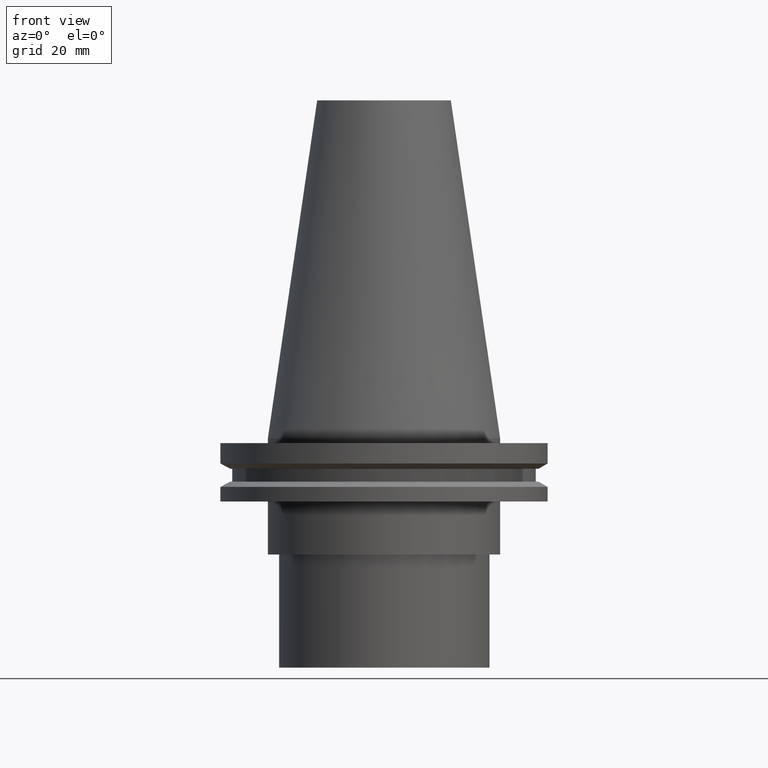
[diagram: clean part render]
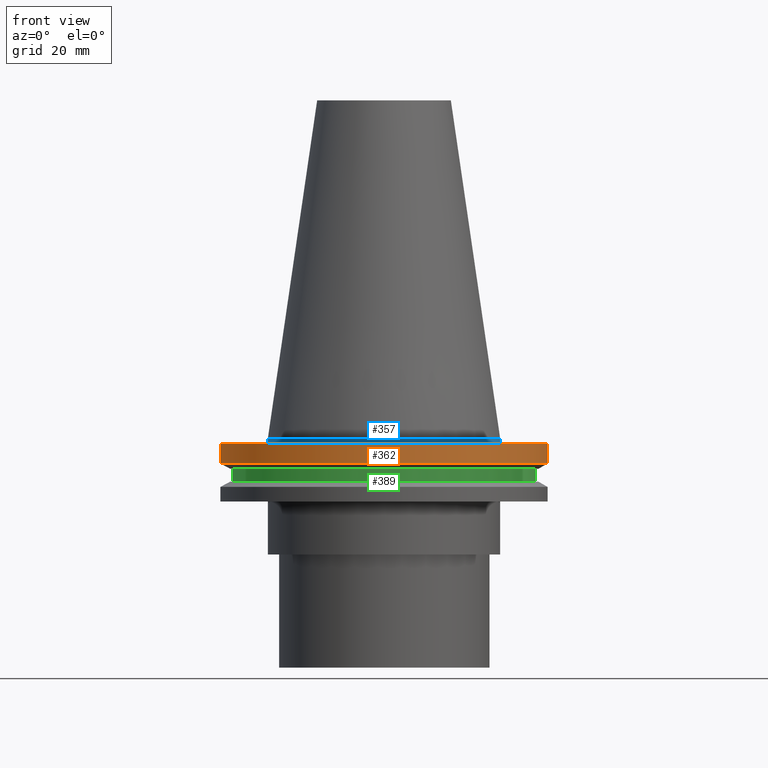
[diagram: same view with three faces highlighted in distinct colors, each labeled with its STEP entity id]
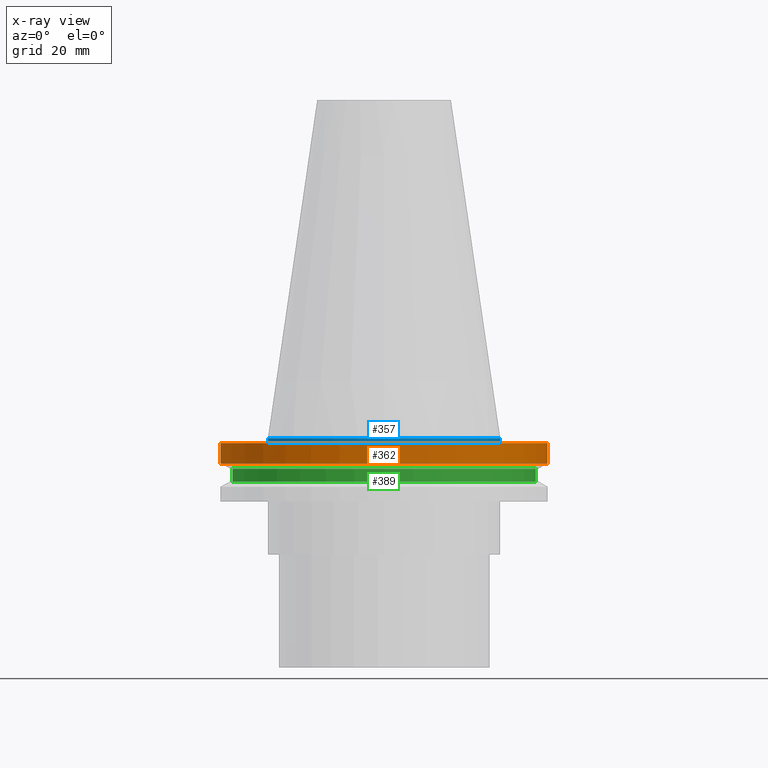
[diagram: x-ray of the same camera — body ghosted, the three highlighted faces saturated]
A machine part, front view with three faces highlighted in distinct colors.
The next image is the same camera in x-ray (body ghosted, the three faces saturated) — at least one of them is partly hidden behind the body in this view.
Their STEP definitions:

[orange] entity #362 — the highlighted cylindrical surface (bore or boss wall) has radius 49.215 mm, axis along (-0, -0, 1).
#18 = VERTEX_POINT ( 'NONE', #197 ) ;
#58 = EDGE_LOOP ( 'NONE', ( #141 ) ) ;
#82 = CARTESIAN_POINT ( 'NONE',  ( 49.21500000000000341, 0.000000000000000000, -7.602389855251287187 ) ) ;
#124 = FACE_OUTER_BOUND ( 'NONE', #368, .T. ) ;
#127 = DIRECTION ( 'NONE',  ( -0.000000000000000000, -0.000000000000000000, 1.000000000000000000 ) ) ;
#128 = DIRECTION ( 'NONE',  ( 1.000000000000000000, 0.000000000000000000, 0.000000000000000000 ) ) ;
#141 = ORIENTED_EDGE ( 'NONE', *, *, #273, .T. ) ;
#160 = CARTESIAN_POINT ( 'NONE',  ( 0.000000000000000000, 0.000000000000000000, -7.602389855251287187 ) ) ;
#172 = EDGE_CURVE ( 'NONE', #18, #18, #373, .T. ) ;
#179 = DIRECTION ( 'NONE',  ( -0.000000000000000000, -0.000000000000000000, 1.000000000000000000 ) ) ;
#197 = CARTESIAN_POINT ( 'NONE',  ( 49.21499999999999631, 0.000000000000000000, -1.499999999999987566 ) ) ;
#224 = AXIS2_PLACEMENT_3D ( 'NONE', #242, #334, #244 ) ;
#229 = AXIS2_PLACEMENT_3D ( 'NONE', #289, #179, #356 ) ;
#242 = CARTESIAN_POINT ( 'NONE',  ( 0.000000000000000000, 0.000000000000000000, 101.5999999999999943 ) ) ;
#244 = DIRECTION ( 'NONE',  ( 1.000000000000000000, 0.000000000000000000, 0.000000000000000000 ) ) ;
#272 = CYLINDRICAL_SURFACE ( 'NONE', #224, 49.21499999999999631 ) ;
#273 = EDGE_CURVE ( 'NONE', #376, #376, #278, .T. ) ;
#278 = CIRCLE ( 'NONE', #326, 49.21500000000000341 ) ;
#287 = ORIENTED_EDGE ( 'NONE', *, *, #172, .F. ) ;
#289 = CARTESIAN_POINT ( 'NONE',  ( 0.000000000000000000, 0.000000000000000000, -1.499999999999987566 ) ) ;
#326 = AXIS2_PLACEMENT_3D ( 'NONE', #160, #127, #128 ) ;
#334 = DIRECTION ( 'NONE',  ( -0.000000000000000000, -0.000000000000000000, 1.000000000000000000 ) ) ;
#336 = FACE_OUTER_BOUND ( 'NONE', #58, .T. ) ;
#356 = DIRECTION ( 'NONE',  ( 1.000000000000000000, 0.000000000000000000, 0.000000000000000000 ) ) ;
#362 = ADVANCED_FACE ( 'NONE', ( #124, #336 ), #272, .T. ) ;
#368 = EDGE_LOOP ( 'NONE', ( #287 ) ) ;
#373 = CIRCLE ( 'NONE', #229, 49.21499999999999631 ) ;
#376 = VERTEX_POINT ( 'NONE', #82 ) ;

[blue] entity #357 — the highlighted cylindrical surface (bore or boss wall) has radius 34.925 mm, axis along (-0, -0, 1).
#23 = AXIS2_PLACEMENT_3D ( 'NONE', #343, #79, #191 ) ;
#29 = EDGE_CURVE ( 'NONE', #367, #367, #313, .T. ) ;
#44 = AXIS2_PLACEMENT_3D ( 'NONE', #311, #95, #246 ) ;
#79 = DIRECTION ( 'NONE',  ( -0.000000000000000000, -0.000000000000000000, 1.000000000000000000 ) ) ;
#95 = DIRECTION ( 'NONE',  ( -0.000000000000000000, -0.000000000000000000, 1.000000000000000000 ) ) ;
#100 = DIRECTION ( 'NONE',  ( -0.000000000000000000, -0.000000000000000000, 1.000000000000000000 ) ) ;
#106 = AXIS2_PLACEMENT_3D ( 'NONE', #131, #100, #338 ) ;
#107 = CARTESIAN_POINT ( 'NONE',  ( 34.92499999999999005, 0.000000000000000000, -1.499999999999987566 ) ) ;
#111 = EDGE_LOOP ( 'NONE', ( #139 ) ) ;
#131 = CARTESIAN_POINT ( 'NONE',  ( 0.000000000000000000, 0.000000000000000000, -1.499999999999987566 ) ) ;
#135 = VERTEX_POINT ( 'NONE', #107 ) ;
#139 = ORIENTED_EDGE ( 'NONE', *, *, #29, .F. ) ;
#183 = CYLINDRICAL_SURFACE ( 'NONE', #44, 34.92499999999999005 ) ;
#188 = FACE_OUTER_BOUND ( 'NONE', #284, .T. ) ;
#189 = CARTESIAN_POINT ( 'NONE',  ( 34.92499999999999005, 0.000000000000000000, 0.000000000000000000 ) ) ;
#191 = DIRECTION ( 'NONE',  ( 1.000000000000000000, 0.000000000000000000, 0.000000000000000000 ) ) ;
#226 = EDGE_CURVE ( 'NONE', #135, #135, #340, .T. ) ;
#246 = DIRECTION ( 'NONE',  ( 1.000000000000000000, 0.000000000000000000, 0.000000000000000000 ) ) ;
#270 = FACE_OUTER_BOUND ( 'NONE', #111, .T. ) ;
#284 = EDGE_LOOP ( 'NONE', ( #372 ) ) ;
#311 = CARTESIAN_POINT ( 'NONE',  ( 0.000000000000000000, 0.000000000000000000, 101.5999999999999943 ) ) ;
#313 = CIRCLE ( 'NONE', #23, 34.92499999999999005 ) ;
#338 = DIRECTION ( 'NONE',  ( 1.000000000000000000, 0.000000000000000000, 0.000000000000000000 ) ) ;
#340 = CIRCLE ( 'NONE', #106, 34.92499999999999005 ) ;
#343 = CARTESIAN_POINT ( 'NONE',  ( 0.000000000000000000, 0.000000000000000000, 0.000000000000000000 ) ) ;
#357 = ADVANCED_FACE ( 'NONE', ( #270, #188 ), #183, .T. ) ;
#367 = VERTEX_POINT ( 'NONE', #189 ) ;
#372 = ORIENTED_EDGE ( 'NONE', *, *, #226, .T. ) ;

[green] entity #389 — the highlighted cylindrical surface (bore or boss wall) has radius 45.645 mm, axis along (-0, -0, 1).
#7 = VERTEX_POINT ( 'NONE', #248 ) ;
#27 = EDGE_CURVE ( 'NONE', #7, #7, #180, .T. ) ;
#41 = CARTESIAN_POINT ( 'NONE',  ( 0.000000000000000000, 0.000000000000000000, -13.05499999999999794 ) ) ;
#43 = DIRECTION ( 'NONE',  ( -0.000000000000000000, -0.000000000000000000, 1.000000000000000000 ) ) ;
#46 = AXIS2_PLACEMENT_3D ( 'NONE', #80, #322, #221 ) ;
#51 = ORIENTED_EDGE ( 'NONE', *, *, #345, .T. ) ;
#72 = CARTESIAN_POINT ( 'NONE',  ( 0.000000000000000000, 0.000000000000000000, 101.5999999999999943 ) ) ;
#74 = ORIENTED_EDGE ( 'NONE', *, *, #27, .F. ) ;
#80 = CARTESIAN_POINT ( 'NONE',  ( 0.000000000000000000, 0.000000000000000000, -9.204999999999991189 ) ) ;
#104 = VERTEX_POINT ( 'NONE', #227 ) ;
#180 = CIRCLE ( 'NONE', #46, 45.64500000000000313 ) ;
#214 = FACE_OUTER_BOUND ( 'NONE', #382, .T. ) ;
#215 = DIRECTION ( 'NONE',  ( -0.000000000000000000, -0.000000000000000000, 1.000000000000000000 ) ) ;
#221 = DIRECTION ( 'NONE',  ( 1.000000000000000000, 0.000000000000000000, 0.000000000000000000 ) ) ;
#227 = CARTESIAN_POINT ( 'NONE',  ( 45.64500000000000313, 0.000000000000000000, -13.05499999999999794 ) ) ;
#245 = CIRCLE ( 'NONE', #310, 45.64500000000000313 ) ;
#248 = CARTESIAN_POINT ( 'NONE',  ( 45.64500000000000313, 0.000000000000000000, -9.204999999999991189 ) ) ;
#249 = EDGE_LOOP ( 'NONE', ( #74 ) ) ;
#277 = DIRECTION ( 'NONE',  ( 1.000000000000000000, 0.000000000000000000, 0.000000000000000000 ) ) ;
#279 = DIRECTION ( 'NONE',  ( 1.000000000000000000, 0.000000000000000000, 0.000000000000000000 ) ) ;
#310 = AXIS2_PLACEMENT_3D ( 'NONE', #41, #215, #279 ) ;
#322 = DIRECTION ( 'NONE',  ( -0.000000000000000000, -0.000000000000000000, 1.000000000000000000 ) ) ;
#337 = CYLINDRICAL_SURFACE ( 'NONE', #358, 45.64500000000000313 ) ;
#345 = EDGE_CURVE ( 'NONE', #104, #104, #245, .T. ) ;
#358 = AXIS2_PLACEMENT_3D ( 'NONE', #72, #43, #277 ) ;
#364 = FACE_OUTER_BOUND ( 'NONE', #249, .T. ) ;
#382 = EDGE_LOOP ( 'NONE', ( #51 ) ) ;
#389 = ADVANCED_FACE ( 'NONE', ( #364, #214 ), #337, .T. ) ;